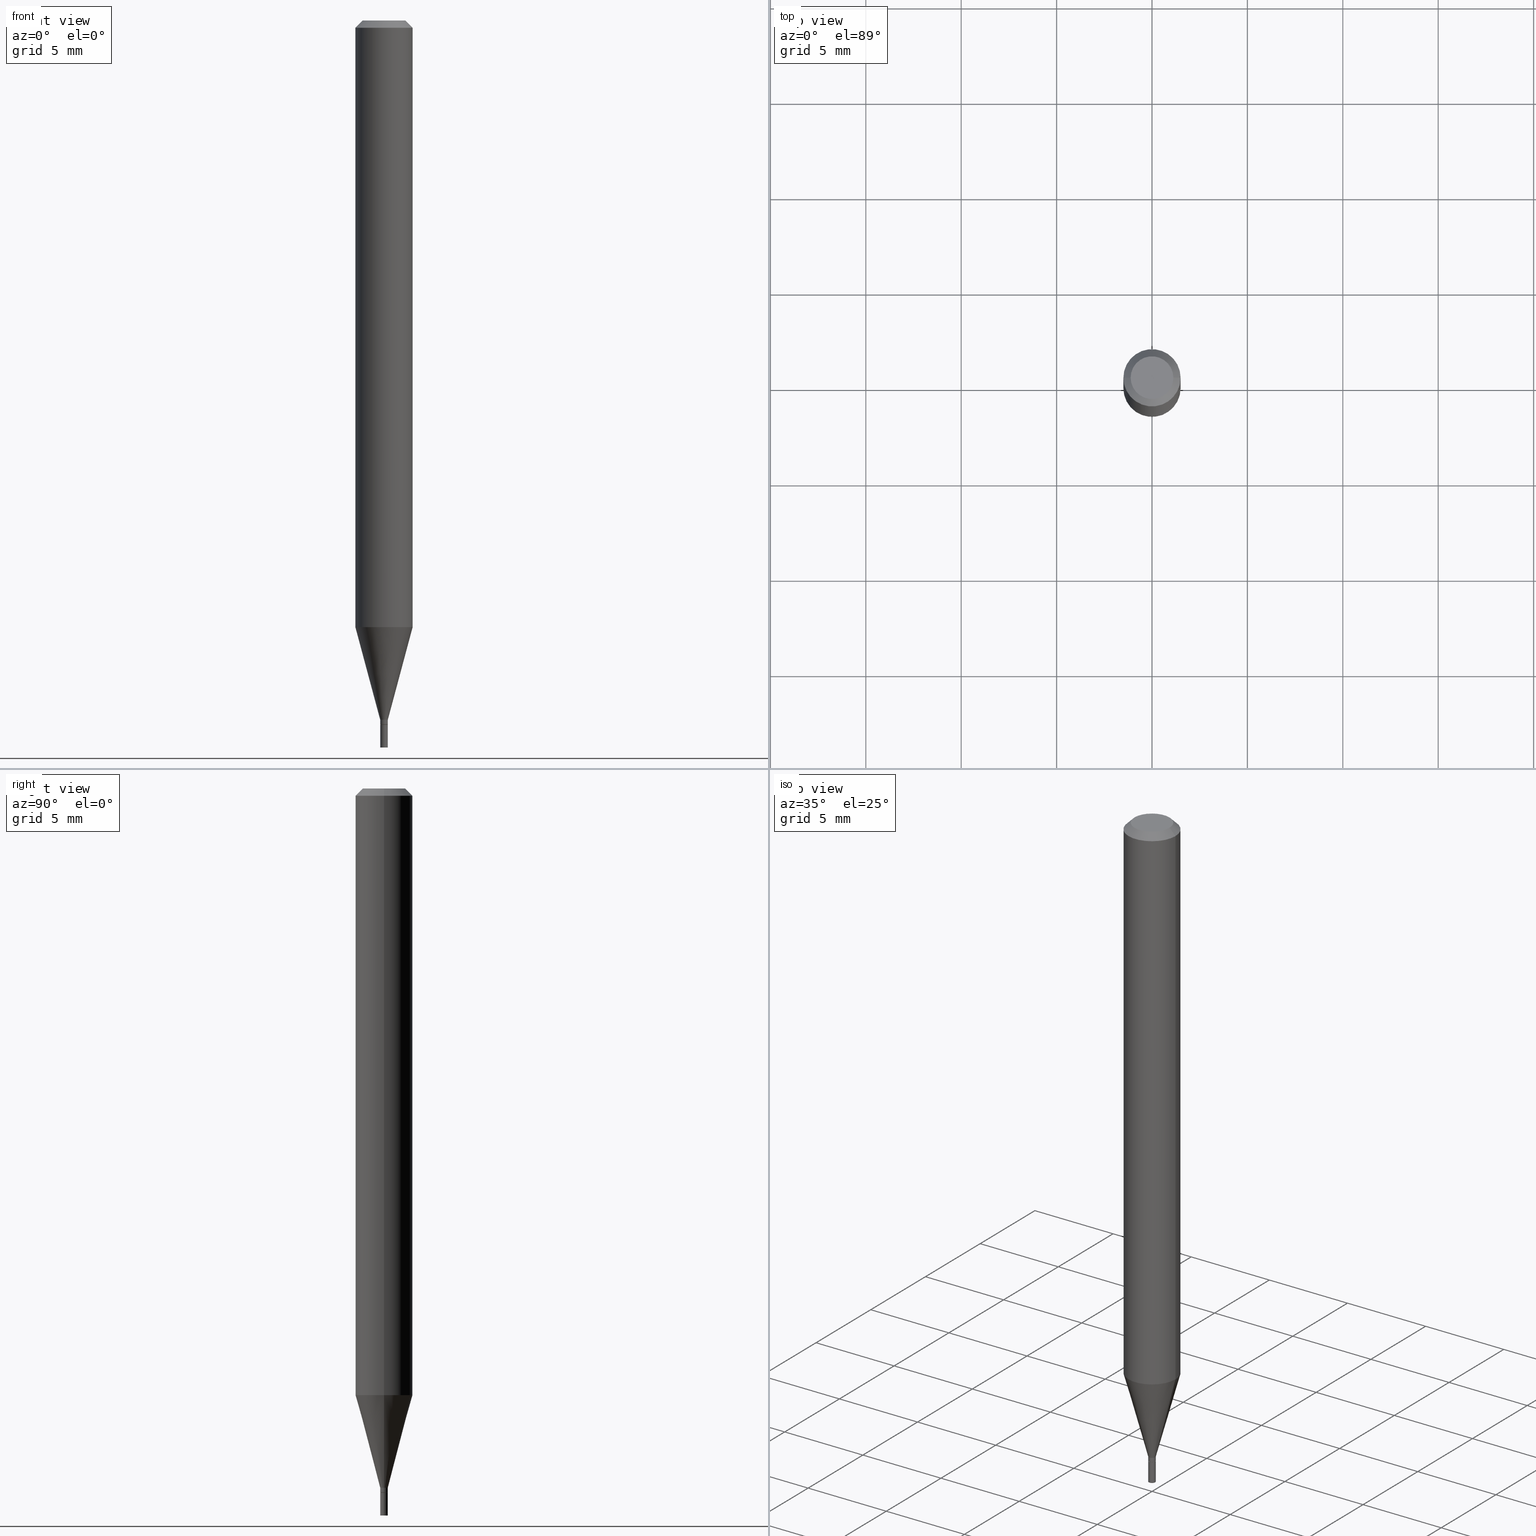
[diagram: canonical four-view strip — front | top / right | iso, engineering-drawing reading convention]
A machine part, canonical four-view strip (front | top / right | iso — engineering-drawing reading convention). The complete STEP part file that produces these views, byte-faithful:
ISO-10303-21;
HEADER;
FILE_DESCRIPTION (( 'STEP AP203' ),
    '1' );
FILE_NAME ('05057.STEP',
    '2024-03-14T17:38:15',
    ( '' ),
    ( '' ),
    'SwSTEP 2.0',
    'SolidWorks 2023',
    '' );
FILE_SCHEMA (( 'CONFIG_CONTROL_DESIGN' ));
ENDSEC;

DATA;
#1 = CARTESIAN_POINT ( 'NONE',  ( 3.551554347222674728E-29, -5.070678348401901214E-15, -1.452300000000000146 ) ) ;
#2 = DIRECTION ( 'NONE',  ( 1.000000000000000000, -6.982962677686327453E-15, 0.000000000000000000 ) ) ;
#3 = ORIENTED_EDGE ( 'NONE', *, *, #91, .F. ) ;
#4 = EDGE_CURVE ( 'NONE', #354, #336, #350, .T. ) ;
#5 = CLOSED_SHELL ( 'NONE', ( #11, #209, #257, #51 ) ) ;
#6 = ORIENTED_EDGE ( 'NONE', *, *, #247, .T. ) ;
#7 = AXIS2_PLACEMENT_3D ( 'NONE', #420, #95, #389 ) ;
#8 =( NAMED_UNIT ( * ) SI_UNIT ( $, .STERADIAN. ) SOLID_ANGLE_UNIT ( ) );
#9 = ORIENTED_EDGE ( 'NONE', *, *, #239, .F. ) ;
#10 = CYLINDRICAL_SURFACE ( 'NONE', #199, 0.05904999999999999832 ) ;
#11 = ADVANCED_FACE ( 'NONE', ( #318 ), #352, .T. ) ;
#12 = APPROVAL ( #152, 'UNSPECIFIED' ) ;
#13 = AXIS2_PLACEMENT_3D ( 'NONE', #283, #311, #104 ) ;
#14 = LOCAL_TIME ( 13, 38, 15.00000000000000000, #48 ) ;
#15 = EDGE_LOOP ( 'NONE', ( #9, #450, #189, #264 ) ) ;
#16 = EDGE_CURVE ( 'NONE', #146, #225, #453, .T. ) ;
#17 = CALENDAR_DATE ( 2024, 14, 3 ) ;
#18 = CARTESIAN_POINT ( 'NONE',  ( 0.000000000000000000, 0.000000000000000000, 0.000000000000000000 ) ) ;
#19 = AXIS2_PLACEMENT_3D ( 'NONE', #400, #115, #41 ) ;
#20 = DATE_AND_TIME ( #269, #78 ) ;
#21 = DIRECTION ( 'NONE',  ( -2.445468806185136597E-29, 3.491481338843145583E-15, 1.000000000000000000 ) ) ;
#22 = CARTESIAN_POINT ( 'NONE',  ( 0.04404999999999999888, -3.798447818264462051E-16, -1.162416517208521811E-16 ) ) ;
#23 = PERSON_AND_ORGANIZATION_ROLE ( 'creator' ) ;
#24 = ORIENTED_EDGE ( 'NONE', *, *, #295, .F. ) ;
#25 = CARTESIAN_POINT ( 'NONE',  ( 0.007349999999999998895, -5.123748864752316500E-15, -1.452800000000000091 ) ) ;
#26 = CARTESIAN_POINT ( 'NONE',  ( 3.075995059520799729E-16, 0.04404999999999999888, -2.119205788364678519E-16 ) ) ;
#27 = CARTESIAN_POINT ( 'NONE',  ( 5.481625701987270760E-17, 0.007849999999994927008, -1.452800000000000091 ) ) ;
#28 = CIRCLE ( 'NONE', #94, 0.05904999999999999832 ) ;
#29 = LOCAL_TIME ( 13, 38, 15.00000000000000000, #442 ) ;
#30 = DIRECTION ( 'NONE',  ( 2.438088387897960049E-29, -3.491481338843145188E-15, -1.000000000000000000 ) ) ;
#31 = UNCERTAINTY_MEASURE_WITH_UNIT (LENGTH_MEASURE( 1.000000000000000082E-05 ), #62, 'distance_accuracy_value', 'NONE');
#32 = CARTESIAN_POINT ( 'NONE',  ( 3.668203209277705088E-31, -5.237222008264718399E-17, -0.01499999999999999944 ) ) ;
#33 = EDGE_CURVE ( 'NONE', #306, #460, #133, .T. ) ;
#34 = CIRCLE ( 'NONE', #7, 0.007849999999999919542 ) ;
#35 = DIRECTION ( 'NONE',  ( 1.000000000000000000, -6.982962677686273021E-15, 0.000000000000000000 ) ) ;
#36 = CIRCLE ( 'NONE', #395, 0.007849999999999921277 ) ;
#37 = ORIENTED_EDGE ( 'NONE', *, *, #129, .F. ) ;
#38 = CC_DESIGN_PERSON_AND_ORGANIZATION_ASSIGNMENT ( #158, #23, ( #305 ) ) ;
#39 = ADVANCED_FACE ( 'NONE', ( #166 ), #134, .T. ) ;
#40 = EDGE_LOOP ( 'NONE', ( #424, #37 ) ) ;
#41 = DIRECTION ( 'NONE',  ( 1.000000000000000000, -6.982962677686327453E-15, 0.000000000000000000 ) ) ;
#42 = AXIS2_PLACEMENT_3D ( 'NONE', #47, #120, #465 ) ;
#43 = EDGE_CURVE ( 'NONE', #306, #225, #212, .T. ) ;
#44 = PRODUCT_DEFINITION_FORMATION_WITH_SPECIFIED_SOURCE ( 'ANY', '', #56, .NOT_KNOWN. ) ;
#45 = ORIENTED_EDGE ( 'NONE', *, *, #247, .F. ) ;
#46 = DIRECTION ( 'NONE',  ( 1.000000000000000000, -6.982962677686273021E-15, 0.000000000000000000 ) ) ;
#47 = CARTESIAN_POINT ( 'NONE',  ( 0.000000000000000000, 0.000000000000000000, 0.000000000000000000 ) ) ;
#48 = COORDINATED_UNIVERSAL_TIME_OFFSET ( 5, 0, .BEHIND. ) ;
#49 = AXIS2_PLACEMENT_3D ( 'NONE', #203, #274, #281 ) ;
#50 = AXIS2_PLACEMENT_3D ( 'NONE', #236, #108, #251 ) ;
#51 = ADVANCED_FACE ( 'NONE', ( #53 ), #355, .F. ) ;
#52 = PERSON_AND_ORGANIZATION ( #231, #439 ) ;
#53 = FACE_OUTER_BOUND ( 'NONE', #294, .T. ) ;
#54 = ORIENTED_EDGE ( 'NONE', *, *, #239, .T. ) ;
#55 = CARTESIAN_POINT ( 'NONE',  ( 3.552777081625766969E-29, -5.072424089071322718E-15, -1.452800000000000091 ) ) ;
#56 = PRODUCT ( '05057', '05057', '', ( #214 ) ) ;
#57 = DESIGN_CONTEXT ( 'detailed design', #443, 'design' ) ;
#58 = CIRCLE ( 'NONE', #13, 0.007349999999999998895 ) ;
#59 = CARTESIAN_POINT ( 'NONE',  ( 0.007849999999999999339, -5.481625701983718421E-17, 3.827798768999809240E-31 ) ) ;
#60 = ORIENTED_EDGE ( 'NONE', *, *, #89, .T. ) ;
#61 = DIRECTION ( 'NONE',  ( -2.445468806185136877E-29, 3.491481338843145188E-15, 1.000000000000000000 ) ) ;
#62 =( CONVERSION_BASED_UNIT ( 'INCH', #388 ) LENGTH_UNIT ( ) NAMED_UNIT ( #344 ) );
#63 = DIRECTION ( 'NONE',  ( 1.000000000000000000, -6.982962677686273021E-15, 0.000000000000000000 ) ) ;
#64 = CARTESIAN_POINT ( 'NONE',  ( -0.05904999999999999832, 4.195754854663391478E-16, -2.904631170795521892E-30 ) ) ;
#65 = AXIS2_PLACEMENT_3D ( 'NONE', #415, #21, #159 ) ;
#66 = DIRECTION ( 'NONE',  ( -2.445468806185136597E-29, 3.491481338843145583E-15, 1.000000000000000000 ) ) ;
#67 = CARTESIAN_POINT ( 'NONE',  ( 0.007849999999999919542, -5.481625701983663571E-17, 3.827798768999770704E-31 ) ) ;
#68 = ADVANCED_FACE ( 'NONE', ( #227 ), #325, .T. ) ;
#69 = LINE ( 'NONE', #59, #208 ) ;
#70 = CYLINDRICAL_SURFACE ( 'NONE', #42, 0.007849999999999999339 ) ;
#71 = CARTESIAN_POINT ( 'NONE',  ( 3.061039765313920249E-29, -4.370353525270541292E-15, -1.251718998652473935 ) ) ;
#72 = CC_DESIGN_DATE_AND_TIME_ASSIGNMENT ( #127, #190, ( #213 ) ) ;
#73 = FACE_OUTER_BOUND ( 'NONE', #233, .T. ) ;
#74 = ORIENTED_EDGE ( 'NONE', *, *, #91, .T. ) ;
#75 = ORIENTED_EDGE ( 'NONE', *, *, #169, .T. ) ;
#76 = ORIENTED_EDGE ( 'NONE', *, *, #285, .T. ) ;
#77 = AXIS2_PLACEMENT_3D ( 'NONE', #164, #138, #98 ) ;
#78 = LOCAL_TIME ( 13, 38, 15.00000000000000000, #347 ) ;
#79 = DIRECTION ( 'NONE',  ( 1.000000000000000000, -6.982962677686274599E-15, 0.000000000000000000 ) ) ;
#80 = ORIENTED_EDGE ( 'NONE', *, *, #327, .T. ) ;
#81 = PERSON_AND_ORGANIZATION ( #231, #439 ) ;
#82 = APPROVAL ( #229, 'UNSPECIFIED' ) ;
#83 = VECTOR ( 'NONE', #387, 39.37007874015748143 ) ;
#84 = CIRCLE ( 'NONE', #379, 0.007849999999999919542 ) ;
#85 = DIRECTION ( 'NONE',  ( -2.445468806185136597E-29, 3.491481338843145583E-15, 1.000000000000000000 ) ) ;
#86 = DATE_AND_TIME ( #276, #292 ) ;
#87 = CARTESIAN_POINT ( 'NONE',  ( -0.007849999999999919542, -4.981731670925723825E-15, -1.442800000000000304 ) ) ;
#88 = CARTESIAN_POINT ( 'NONE',  ( -0.007849999999999919542, -4.466254855364963601E-15, -1.442800000000000304 ) ) ;
#89 = EDGE_CURVE ( 'NONE', #460, #145, #447, .T. ) ;
#90 = DIRECTION ( 'NONE',  ( -2.445468806185136877E-29, 3.491481338843145188E-15, 1.000000000000000000 ) ) ;
#91 = EDGE_CURVE ( 'NONE', #114, #222, #412, .T. ) ;
#92 = ORIENTED_EDGE ( 'NONE', *, *, #290, .F. ) ;
#93 = FACE_OUTER_BOUND ( 'NONE', #300, .T. ) ;
#94 = AXIS2_PLACEMENT_3D ( 'NONE', #32, #464, #141 ) ;
#95 = DIRECTION ( 'NONE',  ( -2.445468806185136597E-29, 3.491481338843145583E-15, 1.000000000000000000 ) ) ;
#96 = ORIENTED_EDGE ( 'NONE', *, *, #267, .T. ) ;
#97 = CARTESIAN_POINT ( 'NONE',  ( -0.007349999999999998895, -5.017549970818845172E-15, -1.452800000000000091 ) ) ;
#98 = DIRECTION ( 'NONE',  ( 1.000000000000000000, -6.982962677686265922E-15, 4.876176775795935793E-29 ) ) ;
#99 = LINE ( 'NONE', #391, #177 ) ;
#100 = LINE ( 'NONE', #64, #376 ) ;
#101 = EDGE_CURVE ( 'NONE', #146, #372, #58, .T. ) ;
#102 = EDGE_CURVE ( 'NONE', #259, #222, #69, .T. ) ;
#103 = CARTESIAN_POINT ( 'NONE',  ( -0.007849999999999999339, 5.577760475716785990E-17, -3.861364045850100522E-31 ) ) ;
#104 = DIRECTION ( 'NONE',  ( 1.000000000000000000, -6.982962677686261189E-15, 0.000000000000000000 ) ) ;
#105 = VECTOR ( 'NONE', #61, 39.37007874015748143 ) ;
#106 = CONICAL_SURFACE ( 'NONE', #301, 0.05904999999999999832, 0.7853981633974522758 ) ;
#107 = DIRECTION ( 'NONE',  ( 1.000000000000000000, -6.982962677686265922E-15, 4.888540261209747396E-29 ) ) ;
#108 = DIRECTION ( 'NONE',  ( -2.445468806185136597E-29, 3.491481338843145583E-15, 1.000000000000000000 ) ) ;
#109 = DIRECTION ( 'NONE',  ( -2.438088387897960049E-29, 3.491481338843145188E-15, 1.000000000000000000 ) ) ;
#110 =( NAMED_UNIT ( * ) PLANE_ANGLE_UNIT ( ) SI_UNIT ( $, .RADIAN. ) );
#111 = MANIFOLD_SOLID_BREP ( 'Body-Move/Copy2[1]', #5 ) ;
#112 = AXIS2_PLACEMENT_3D ( 'NONE', #360, #130, #165 ) ;
#113 = PERSON_AND_ORGANIZATION ( #231, #439 ) ;
#114 = VERTEX_POINT ( 'NONE', #316 ) ;
#115 = DIRECTION ( 'NONE',  ( -2.445468806185136597E-29, 3.491481338843145583E-15, 1.000000000000000000 ) ) ;
#116 = EDGE_LOOP ( 'NONE', ( #6, #435, #288, #184 ) ) ;
#117 = CIRCLE ( 'NONE', #19, 0.007849999999999999339 ) ;
#118 = DIRECTION ( 'NONE',  ( -2.445468806185136597E-29, 3.491481338843145583E-15, 1.000000000000000000 ) ) ;
#119 = ORIENTED_EDGE ( 'NONE', *, *, #285, .F. ) ;
#120 = DIRECTION ( 'NONE',  ( -2.445468806185136597E-29, 3.491481338843145583E-15, 1.000000000000000000 ) ) ;
#121 = DATE_AND_TIME ( #17, #29 ) ;
#122 = VERTEX_POINT ( 'NONE', #452 ) ;
#123 = APPROVAL_DATE_TIME ( #121, #82 ) ;
#124 = CONICAL_SURFACE ( 'NONE', #340, 0.007849999999999919542, 0.2617993877991501295 ) ;
#125 = VECTOR ( 'NONE', #416, 39.37007874015747433 ) ;
#126 = ORIENTED_EDGE ( 'NONE', *, *, #290, .T. ) ;
#127 = DATE_AND_TIME ( #265, #433 ) ;
#128 = ORIENTED_EDGE ( 'NONE', *, *, #150, .T. ) ;
#129 = EDGE_CURVE ( 'NONE', #372, #146, #394, .T. ) ;
#130 = DIRECTION ( 'NONE',  ( -2.445468806185136597E-29, 3.491481338843145583E-15, 1.000000000000000000 ) ) ;
#131 = CARTESIAN_POINT ( 'NONE',  ( 3.552777081625766969E-29, -5.072424089071322718E-15, -1.452800000000000091 ) ) ;
#132 = PERSON_AND_ORGANIZATION ( #231, #439 ) ;
#133 = LINE ( 'NONE', #277, #105 ) ;
#134 = CONICAL_SURFACE ( 'NONE', #182, 0.05904999999999999832, 0.7853981633974522758 ) ;
#135 = DIRECTION ( 'NONE',  ( 1.000000000000000000, -6.982962677686265922E-15, 4.888540261209747396E-29 ) ) ;
#136 = CARTESIAN_POINT ( 'NONE',  ( 3.061039765313920249E-29, -4.370353525270541292E-15, -1.251718998652473935 ) ) ;
#137 = CARTESIAN_POINT ( 'NONE',  ( -0.007349999999999998895, -5.020199197992955584E-15, -1.452800000000000091 ) ) ;
#138 = DIRECTION ( 'NONE',  ( -2.445468806185136597E-29, 3.491481338843145583E-15, 1.000000000000000000 ) ) ;
#139 = EDGE_CURVE ( 'NONE', #460, #457, #34, .T. ) ;
#140 = DIRECTION ( 'NONE',  ( -2.445468806185136597E-29, 3.491481338843145583E-15, 1.000000000000000000 ) ) ;
#141 = DIRECTION ( 'NONE',  ( 1.000000000000000000, -6.982962677686266711E-15, 0.000000000000000000 ) ) ;
#142 = VECTOR ( 'NONE', #459, 39.37007874015748143 ) ;
#143 = AXIS2_PLACEMENT_3D ( 'NONE', #270, #200, #135 ) ;
#144 = APPLICATION_PROTOCOL_DEFINITION ( 'international standard', 'config_control_design', 1994, #461 ) ;
#145 = VERTEX_POINT ( 'NONE', #371 ) ;
#146 = VERTEX_POINT ( 'NONE', #406 ) ;
#147 = DIRECTION ( 'NONE',  ( -2.445468806185136597E-29, 3.491481338843145583E-15, 1.000000000000000000 ) ) ;
#148 = CARTESIAN_POINT ( 'NONE',  ( 2.842653332627866660E-45, -4.058555577796679728E-31, -1.162416517208545723E-16 ) ) ;
#149 = ORIENTED_EDGE ( 'NONE', *, *, #392, .T. ) ;
#150 = EDGE_CURVE ( 'NONE', #336, #354, #278, .T. ) ;
#151 = ORIENTED_EDGE ( 'NONE', *, *, #43, .F. ) ;
#152 = APPROVAL_STATUS ( 'not_yet_approved' ) ;
#153 = ORIENTED_EDGE ( 'NONE', *, *, #169, .F. ) ;
#154 = APPLICATION_PROTOCOL_DEFINITION ( 'international standard', 'config_control_design', 1994, #443 ) ;
#155 = DIRECTION ( 'NONE',  ( -2.445468806185136597E-29, 3.491481338843145583E-15, 1.000000000000000000 ) ) ;
#156 = CIRCLE ( 'NONE', #432, 0.05904999999999999832 ) ;
#157 = AXIS2_PLACEMENT_3D ( 'NONE', #228, #422, #271 ) ;
#158 = PERSON_AND_ORGANIZATION ( #231, #439 ) ;
#159 = DIRECTION ( 'NONE',  ( 1.000000000000000000, -6.982962677686327453E-15, 0.000000000000000000 ) ) ;
#160 = FACE_OUTER_BOUND ( 'NONE', #15, .T. ) ;
#161 = CARTESIAN_POINT ( 'NONE',  ( -0.05904999999999999832, -1.791787387210255284E-15, -0.01499999999999999944 ) ) ;
#162 = DIRECTION ( 'NONE',  ( -2.445468806185136877E-29, 3.491481338843145188E-15, 1.000000000000000000 ) ) ;
#163 = PERSON_AND_ORGANIZATION ( #231, #439 ) ;
#164 = CARTESIAN_POINT ( 'NONE',  ( 0.000000000000000000, 0.000000000000000000, 0.000000000000000000 ) ) ;
#165 = DIRECTION ( 'NONE',  ( 1.000000000000000000, -6.982962677686266711E-15, 0.000000000000000000 ) ) ;
#166 = FACE_OUTER_BOUND ( 'NONE', #364, .T. ) ;
#167 = LINE ( 'NONE', #322, #142 ) ;
#168 = FACE_OUTER_BOUND ( 'NONE', #440, .T. ) ;
#169 = EDGE_CURVE ( 'NONE', #186, #145, #156, .T. ) ;
#170 = AXIS2_PLACEMENT_3D ( 'NONE', #148, #176, #107 ) ;
#171 =( GEOMETRIC_REPRESENTATION_CONTEXT ( 3 ) GLOBAL_UNCERTAINTY_ASSIGNED_CONTEXT ( ( #31 ) ) GLOBAL_UNIT_ASSIGNED_CONTEXT ( ( #62, #110, #8 ) ) REPRESENTATION_CONTEXT ( 'NONE', 'WORKASPACE' ) );
#172 = DIRECTION ( 'NONE',  ( -1.000000000000000000, 6.982962677686265922E-15, -4.876176775795935793E-29 ) ) ;
#173 = DIRECTION ( 'NONE',  ( -2.445468806185136877E-29, 3.491481338843145188E-15, 1.000000000000000000 ) ) ;
#174 = DIRECTION ( 'NONE',  ( -2.445468806185136597E-29, 3.491481338843145583E-15, 1.000000000000000000 ) ) ;
#175 = ADVANCED_FACE ( 'NONE', ( #335 ), #124, .T. ) ;
#176 = DIRECTION ( 'NONE',  ( -2.445468806185136597E-29, 3.491481338843145583E-15, 1.000000000000000000 ) ) ;
#177 = VECTOR ( 'NONE', #206, 39.37007874015748143 ) ;
#178 = CARTESIAN_POINT ( 'NONE',  ( 0.000000000000000000, 0.000000000000000000, 0.000000000000000000 ) ) ;
#179 = EDGE_LOOP ( 'NONE', ( #266, #128 ) ) ;
#180 = ADVANCED_FACE ( 'NONE', ( #296 ), #428, .T. ) ;
#181 = CC_DESIGN_PERSON_AND_ORGANIZATION_ASSIGNMENT ( #52, #193, ( #213 ) ) ;
#182 = AXIS2_PLACEMENT_3D ( 'NONE', #413, #242, #279 ) ;
#183 = AXIS2_PLACEMENT_3D ( 'NONE', #178, #333, #402 ) ;
#184 = ORIENTED_EDGE ( 'NONE', *, *, #102, .F. ) ;
#185 = FACE_OUTER_BOUND ( 'NONE', #343, .T. ) ;
#186 = VERTEX_POINT ( 'NONE', #373 ) ;
#187 = DIRECTION ( 'NONE',  ( 0.7071067811865503483, -7.319954787623265512E-15, -0.7071067811865446862 ) ) ;
#188 = ORIENTED_EDGE ( 'NONE', *, *, #425, .F. ) ;
#189 = ORIENTED_EDGE ( 'NONE', *, *, #295, .T. ) ;
#190 = DATE_TIME_ROLE ( 'classification_date' ) ;
#191 = EDGE_LOOP ( 'NONE', ( #405, #370, #445, #92 ) ) ;
#192 = AXIS2_PLACEMENT_3D ( 'NONE', #223, #437, #220 ) ;
#193 = PERSON_AND_ORGANIZATION_ROLE ( 'classification_officer' ) ;
#194 = ORIENTED_EDGE ( 'NONE', *, *, #101, .T. ) ;
#195 = EDGE_LOOP ( 'NONE', ( #45, #411 ) ) ;
#196 = CC_DESIGN_PERSON_AND_ORGANIZATION_ASSIGNMENT ( #307, #414, ( #44 ) ) ;
#197 = DATE_AND_TIME ( #380, #14 ) ;
#198 = ORIENTED_EDGE ( 'NONE', *, *, #102, .T. ) ;
#199 = AXIS2_PLACEMENT_3D ( 'NONE', #243, #66, #463 ) ;
#200 = DIRECTION ( 'NONE',  ( -2.445468806185136597E-29, 3.491481338843145583E-15, 1.000000000000000000 ) ) ;
#201 = ORIENTED_EDGE ( 'NONE', *, *, #332, .F. ) ;
#202 = CARTESIAN_POINT ( 'NONE',  ( 0.007849999999999919542, -5.092325532702727858E-15, -1.442800000000000304 ) ) ;
#203 = CARTESIAN_POINT ( 'NONE',  ( 0.000000000000000000, 0.000000000000000000, 0.000000000000000000 ) ) ;
#204 = DIRECTION ( 'NONE',  ( 2.438088387897960049E-29, -3.491481338843145188E-15, -1.000000000000000000 ) ) ;
#205 = LINE ( 'NONE', #202, #125 ) ;
#206 = DIRECTION ( 'NONE',  ( -0.7071067811865503483, 2.468850131082286248E-15, -0.7071067811865446862 ) ) ;
#207 = CLOSED_SHELL ( 'NONE', ( #382, #254, #39, #284, #409, #175, #68, #462, #374, #261, #180, #434 ) ) ;
#208 = VECTOR ( 'NONE', #162, 39.37007874015748143 ) ;
#209 = ADVANCED_FACE ( 'NONE', ( #337 ), #375, .F. ) ;
#210 = CARTESIAN_POINT ( 'NONE',  ( 0.007849999999999999339, -5.292038265284556544E-15, -1.500000000000000222 ) ) ;
#211 = LINE ( 'NONE', #248, #226 ) ;
#212 = CIRCLE ( 'NONE', #309, 0.007849999999999921277 ) ;
#213 = SECURITY_CLASSIFICATION ( '', '', #449 ) ;
#214 = MECHANICAL_CONTEXT ( 'NONE', #461, 'mechanical' ) ;
#215 = CC_DESIGN_PERSON_AND_ORGANIZATION_ASSIGNMENT ( #81, #417, ( #44 ) ) ;
#216 = ORIENTED_EDGE ( 'NONE', *, *, #33, .T. ) ;
#217 = ORIENTED_EDGE ( 'NONE', *, *, #139, .F. ) ;
#218 = CONICAL_SURFACE ( 'NONE', #466, 0.007349999999999998895, 0.7853981633974718157 ) ;
#219 = CC_DESIGN_APPROVAL ( #12, ( #213 ) ) ;
#220 = DIRECTION ( 'NONE',  ( 1.000000000000000000, -6.982962677686261189E-15, 0.000000000000000000 ) ) ;
#221 = CARTESIAN_POINT ( 'NONE',  ( 3.576687321579069994E-29, -5.368277968210015545E-15, -1.500000000000000222 ) ) ;
#222 = VERTEX_POINT ( 'NONE', #367 ) ;
#223 = CARTESIAN_POINT ( 'NONE',  ( 3.552777081625766969E-29, -5.072424089071322718E-15, -1.452800000000000091 ) ) ;
#224 = APPROVAL_STATUS ( 'not_yet_approved' ) ;
#225 = VERTEX_POINT ( 'NONE', #302 ) ;
#226 = VECTOR ( 'NONE', #187, 39.37007874015748143 ) ;
#227 = FACE_OUTER_BOUND ( 'NONE', #249, .T. ) ;
#228 = CARTESIAN_POINT ( 'NONE',  ( 0.000000000000000000, 0.000000000000000000, 0.000000000000000000 ) ) ;
#229 = APPROVAL_STATUS ( 'not_yet_approved' ) ;
#230 = ORIENTED_EDGE ( 'NONE', *, *, #129, .T. ) ;
#231 = PERSON ( 'UNSPECIFIED', 'UNSPECIFIED', 'UNSPECIFIED', ('UNSPECIFIED'), ('UNSPECIFIED'), ('UNSPECIFIED') ) ;
#232 = CYLINDRICAL_SURFACE ( 'NONE', #49, 0.007849999999999919542 ) ;
#233 = EDGE_LOOP ( 'NONE', ( #346, #262, #321, #217 ) ) ;
#234 = SHAPE_DEFINITION_REPRESENTATION ( #304, #298 ) ;
#235 = DIRECTION ( 'NONE',  ( 2.445468806185136597E-29, -3.491481338843145583E-15, -1.000000000000000000 ) ) ;
#236 = CARTESIAN_POINT ( 'NONE',  ( 3.528322393563915424E-29, -5.037509275682891069E-15, -1.442800000000000304 ) ) ;
#237 = VECTOR ( 'NONE', #348, 39.37007874015747433 ) ;
#238 = ORIENTED_EDGE ( 'NONE', *, *, #368, .F. ) ;
#239 = EDGE_CURVE ( 'NONE', #336, #122, #211, .T. ) ;
#240 = LINE ( 'NONE', #103, #252 ) ;
#241 = DIRECTION ( 'NONE',  ( 1.000000000000000000, -6.982962677686261189E-15, 0.000000000000000000 ) ) ;
#242 = DIRECTION ( 'NONE',  ( 2.445468806185136597E-29, -3.491481338843145583E-15, -1.000000000000000000 ) ) ;
#243 = CARTESIAN_POINT ( 'NONE',  ( 0.000000000000000000, 0.000000000000000000, 0.000000000000000000 ) ) ;
#244 = DIRECTION ( 'NONE',  ( -2.445468806185136877E-29, 3.491481338843145188E-15, 1.000000000000000000 ) ) ;
#245 = CARTESIAN_POINT ( 'NONE',  ( 0.007849999999999919542, -5.092325532702727858E-15, -1.442800000000000304 ) ) ;
#246 = CIRCLE ( 'NONE', #286, 0.007849999999999999339 ) ;
#247 = EDGE_CURVE ( 'NONE', #259, #313, #246, .T. ) ;
#248 = CARTESIAN_POINT ( 'NONE',  ( 0.05904999999999999832, -4.574846268510561447E-16, -0.01499999999999999944 ) ) ;
#249 = EDGE_LOOP ( 'NONE', ( #293, #126, #76, #238 ) ) ;
#250 = DIRECTION ( 'NONE',  ( 1.000000000000000000, -6.982962677686265922E-15, 4.876176775795935793E-29 ) ) ;
#251 = DIRECTION ( 'NONE',  ( 1.000000000000000000, -6.982962677686274599E-15, 0.000000000000000000 ) ) ;
#252 = VECTOR ( 'NONE', #173, 39.37007874015748143 ) ;
#253 = AXIS2_PLACEMENT_3D ( 'NONE', #55, #326, #315 ) ;
#254 = ADVANCED_FACE ( 'NONE', ( #329 ), #218, .T. ) ;
#255 = EDGE_LOOP ( 'NONE', ( #365, #230, #342, #151 ) ) ;
#256 = ORIENTED_EDGE ( 'NONE', *, *, #362, .T. ) ;
#257 = ADVANCED_FACE ( 'NONE', ( #408 ), #70, .T. ) ;
#258 = AXIS2_PLACEMENT_3D ( 'NONE', #431, #109, #250 ) ;
#259 = VERTEX_POINT ( 'NONE', #210 ) ;
#260 = CONICAL_SURFACE ( 'NONE', #50, 0.007849999999999919542, 0.2617993877991501295 ) ;
#261 = ADVANCED_FACE ( 'NONE', ( #361 ), #289, .F. ) ;
#262 = ORIENTED_EDGE ( 'NONE', *, *, #43, .T. ) ;
#263 = DATE_TIME_ROLE ( 'creation_date' ) ;
#264 = ORIENTED_EDGE ( 'NONE', *, *, #368, .T. ) ;
#265 = CALENDAR_DATE ( 2024, 14, 3 ) ;
#266 = ORIENTED_EDGE ( 'NONE', *, *, #4, .T. ) ;
#267 = EDGE_CURVE ( 'NONE', #313, #259, #117, .T. ) ;
#268 = APPROVAL ( #224, 'UNSPECIFIED' ) ;
#269 = CALENDAR_DATE ( 2024, 14, 3 ) ;
#270 = CARTESIAN_POINT ( 'NONE',  ( 2.842653332627866660E-45, -4.058555577796679728E-31, -1.162416517208545723E-16 ) ) ;
#271 = DIRECTION ( 'NONE',  ( 1.000000000000000000, -6.982962677686267499E-15, 4.876176775795936353E-29 ) ) ;
#272 = COORDINATED_UNIVERSAL_TIME_OFFSET ( 5, 0, .BEHIND. ) ;
#273 = ORIENTED_EDGE ( 'NONE', *, *, #362, .F. ) ;
#274 = DIRECTION ( 'NONE',  ( -2.445468806185136597E-29, 3.491481338843145583E-15, 1.000000000000000000 ) ) ;
#275 = DIRECTION ( 'NONE',  ( -2.445468806185136597E-29, 3.491481338843145583E-15, 1.000000000000000000 ) ) ;
#276 = CALENDAR_DATE ( 2024, 14, 3 ) ;
#277 = CARTESIAN_POINT ( 'NONE',  ( -0.007849999999999919542, 5.577760475716729290E-17, -3.861364045850061986E-31 ) ) ;
#278 = CIRCLE ( 'NONE', #170, 0.04404999999999999888 ) ;
#279 = DIRECTION ( 'NONE',  ( -1.000000000000000000, 6.982962677686266711E-15, 0.000000000000000000 ) ) ;
#280 = DIRECTION ( 'NONE',  ( -2.445468806185136597E-29, 3.491481338843145583E-15, 1.000000000000000000 ) ) ;
#281 = DIRECTION ( 'NONE',  ( 1.000000000000000000, -6.982962677686267499E-15, 4.876176775795936353E-29 ) ) ;
#282 = DIRECTION ( 'NONE',  ( 1.000000000000000000, -6.982962677686274599E-15, 0.000000000000000000 ) ) ;
#283 = CARTESIAN_POINT ( 'NONE',  ( 3.552777081625766969E-29, -5.072424089071322718E-15, -1.452800000000000091 ) ) ;
#284 = ADVANCED_FACE ( 'NONE', ( #185 ), #10, .T. ) ;
#285 = EDGE_CURVE ( 'NONE', #186, #122, #167, .T. ) ;
#286 = AXIS2_PLACEMENT_3D ( 'NONE', #441, #174, #2 ) ;
#287 = APPROVAL_PERSON_ORGANIZATION ( #163, #268, #410 ) ;
#288 = ORIENTED_EDGE ( 'NONE', *, *, #396, .F. ) ;
#289 = PLANE ( 'NONE',  #258 ) ;
#290 = EDGE_CURVE ( 'NONE', #145, #186, #385, .T. ) ;
#291 = CIRCLE ( 'NONE', #253, 0.007849999999999999339 ) ;
#292 = LOCAL_TIME ( 13, 38, 15.00000000000000000, #272 ) ;
#293 = ORIENTED_EDGE ( 'NONE', *, *, #392, .F. ) ;
#294 = EDGE_LOOP ( 'NONE', ( #334, #74 ) ) ;
#295 = EDGE_CURVE ( 'NONE', #354, #384, #99, .T. ) ;
#296 = FACE_OUTER_BOUND ( 'NONE', #255, .T. ) ;
#297 = CARTESIAN_POINT ( 'NONE',  ( 3.552777081625766969E-29, -5.072424089071322718E-15, -1.452800000000000091 ) ) ;
#298 = ADVANCED_BREP_SHAPE_REPRESENTATION ( '05057', ( #111, #423, #183 ), #171 ) ;
#299 = VECTOR ( 'NONE', #90, 39.37007874015748143 ) ;
#300 = EDGE_LOOP ( 'NONE', ( #338, #60, #153, #378 ) ) ;
#301 = AXIS2_PLACEMENT_3D ( 'NONE', #314, #235, #386 ) ;
#302 = CARTESIAN_POINT ( 'NONE',  ( 0.007849999999999921277, -5.125494605421738004E-15, -1.452300000000000146 ) ) ;
#303 = APPROVAL_ROLE ( '' ) ;
#304 = PRODUCT_DEFINITION_SHAPE ( 'NONE', 'NONE',  #305 ) ;
#305 = PRODUCT_DEFINITION ( 'UNKNOWN', '', #44, #57 ) ;
#306 = VERTEX_POINT ( 'NONE', #444 ) ;
#307 = PERSON_AND_ORGANIZATION ( #231, #439 ) ;
#308 = DIRECTION ( 'NONE',  ( 1.000000000000000000, -6.982962677686266711E-15, 4.876176775795936353E-29 ) ) ;
#309 = AXIS2_PLACEMENT_3D ( 'NONE', #390, #85, #63 ) ;
#310 = CC_DESIGN_APPROVAL ( #268, ( #44 ) ) ;
#311 = DIRECTION ( 'NONE',  ( -2.445468806185136597E-29, 3.491481338843145583E-15, 1.000000000000000000 ) ) ;
#312 = APPROVAL_DATE_TIME ( #20, #268 ) ;
#313 = VERTEX_POINT ( 'NONE', #353 ) ;
#314 = CARTESIAN_POINT ( 'NONE',  ( 3.668203209277705088E-31, -5.237222008264718399E-17, -0.01499999999999999944 ) ) ;
#315 = DIRECTION ( 'NONE',  ( 1.000000000000000000, -6.982962677686327453E-15, 0.000000000000000000 ) ) ;
#316 = CARTESIAN_POINT ( 'NONE',  ( -0.007849999999999999339, -5.099045443910852809E-15, -1.452800000000000091 ) ) ;
#317 = APPROVAL_ROLE ( '' ) ;
#318 = FACE_OUTER_BOUND ( 'NONE', #116, .T. ) ;
#319 =( LENGTH_UNIT ( ) NAMED_UNIT ( * ) SI_UNIT ( $, .METRE. ) );
#320 = DIRECTION ( 'NONE',  ( -0.7071067811865642261, 7.493145998870414114E-15, 0.7071067811865309194 ) ) ;
#321 = ORIENTED_EDGE ( 'NONE', *, *, #341, .T. ) ;
#322 = CARTESIAN_POINT ( 'NONE',  ( 0.05904999999999999832, -4.123439461173740327E-16, 2.879382386107500220E-30 ) ) ;
#323 = AXIS2_PLACEMENT_3D ( 'NONE', #26, #30, #427 ) ;
#324 = APPROVAL_PERSON_ORGANIZATION ( #345, #12, #317 ) ;
#325 = CYLINDRICAL_SURFACE ( 'NONE', #369, 0.05904999999999999832 ) ;
#326 = DIRECTION ( 'NONE',  ( -2.445468806185136597E-29, 3.491481338843145583E-15, 1.000000000000000000 ) ) ;
#327 = EDGE_CURVE ( 'NONE', #372, #306, #328, .T. ) ;
#328 = LINE ( 'NONE', #137, #438 ) ;
#329 = FACE_OUTER_BOUND ( 'NONE', #366, .T. ) ;
#330 = AXIS2_PLACEMENT_3D ( 'NONE', #221, #436, #331 ) ;
#331 = DIRECTION ( 'NONE',  ( 1.000000000000000000, -6.982962677686265922E-15, 4.876176775795935793E-29 ) ) ;
#332 = EDGE_CURVE ( 'NONE', #313, #114, #240, .T. ) ;
#333 = DIRECTION ( 'NONE',  ( 0.000000000000000000, 0.000000000000000000, 1.000000000000000000 ) ) ;
#334 = ORIENTED_EDGE ( 'NONE', *, *, #396, .T. ) ;
#335 = FACE_OUTER_BOUND ( 'NONE', #191, .T. ) ;
#336 = VERTEX_POINT ( 'NONE', #22 ) ;
#337 = FACE_OUTER_BOUND ( 'NONE', #195, .T. ) ;
#338 = ORIENTED_EDGE ( 'NONE', *, *, #404, .T. ) ;
#339 = CARTESIAN_POINT ( 'NONE',  ( 3.528322393563915424E-29, -5.037509275682891069E-15, -1.442800000000000304 ) ) ;
#340 = AXIS2_PLACEMENT_3D ( 'NONE', #339, #147, #79 ) ;
#341 = EDGE_CURVE ( 'NONE', #225, #457, #454, .T. ) ;
#342 = ORIENTED_EDGE ( 'NONE', *, *, #16, .T. ) ;
#343 = EDGE_LOOP ( 'NONE', ( #75, #149, #273, #119 ) ) ;
#344 = DIMENSIONAL_EXPONENTS ( 1.000000000000000000, 0.000000000000000000, 0.000000000000000000, 0.000000000000000000, 0.000000000000000000, 0.000000000000000000, 0.000000000000000000 ) ;
#345 = PERSON_AND_ORGANIZATION ( #231, #439 ) ;
#346 = ORIENTED_EDGE ( 'NONE', *, *, #33, .F. ) ;
#347 = COORDINATED_UNIVERSAL_TIME_OFFSET ( 5, 0, .BEHIND. ) ;
#348 = DIRECTION ( 'NONE',  ( -0.2588190451025214611, 5.211531920934551042E-15, 0.9659258262890682012 ) ) ;
#349 = AXIS2_PLACEMENT_3D ( 'NONE', #131, #275, #241 ) ;
#350 = CIRCLE ( 'NONE', #143, 0.04404999999999999888 ) ;
#351 = CC_DESIGN_SECURITY_CLASSIFICATION ( #213, ( #44 ) ) ;
#352 = CYLINDRICAL_SURFACE ( 'NONE', #77, 0.007849999999999999339 ) ;
#353 = CARTESIAN_POINT ( 'NONE',  ( -0.007849999999999999339, -5.099045443910852809E-15, -1.500000000000000222 ) ) ;
#354 = VERTEX_POINT ( 'NONE', #451 ) ;
#355 = PLANE ( 'NONE',  #357 ) ;
#356 = FACE_OUTER_BOUND ( 'NONE', #179, .T. ) ;
#357 = AXIS2_PLACEMENT_3D ( 'NONE', #27, #204, #172 ) ;
#358 = APPROVAL_PERSON_ORGANIZATION ( #132, #82, #303 ) ;
#359 = CC_DESIGN_DATE_AND_TIME_ASSIGNMENT ( #197, #263, ( #305 ) ) ;
#360 = CARTESIAN_POINT ( 'NONE',  ( 3.668203209277705088E-31, -5.237222008264718399E-17, -0.01499999999999999944 ) ) ;
#361 = FACE_OUTER_BOUND ( 'NONE', #40, .T. ) ;
#362 = EDGE_CURVE ( 'NONE', #122, #384, #458, .T. ) ;
#363 = CYLINDRICAL_SURFACE ( 'NONE', #157, 0.007849999999999919542 ) ;
#364 = EDGE_LOOP ( 'NONE', ( #407, #54, #256, #24 ) ) ;
#365 = ORIENTED_EDGE ( 'NONE', *, *, #327, .F. ) ;
#366 = EDGE_LOOP ( 'NONE', ( #194, #80, #188, #383 ) ) ;
#367 = CARTESIAN_POINT ( 'NONE',  ( 0.007849999999999999339, -5.127240346091160296E-15, -1.452800000000000091 ) ) ;
#368 = EDGE_CURVE ( 'NONE', #384, #122, #28, .T. ) ;
#369 = AXIS2_PLACEMENT_3D ( 'NONE', #18, #155, #308 ) ;
#370 = ORIENTED_EDGE ( 'NONE', *, *, #139, .T. ) ;
#371 = CARTESIAN_POINT ( 'NONE',  ( -0.05904999999999998445, -3.950778039804202587E-15, -1.251718998652473935 ) ) ;
#372 = VERTEX_POINT ( 'NONE', #97 ) ;
#373 = CARTESIAN_POINT ( 'NONE',  ( 0.05904999999999998445, -4.782697471387915423E-15, -1.251718998652473935 ) ) ;
#374 = ADVANCED_FACE ( 'NONE', ( #356 ), #393, .F. ) ;
#375 = PLANE ( 'NONE',  #330 ) ;
#376 = VECTOR ( 'NONE', #244, 39.37007874015748143 ) ;
#377 = COORDINATED_UNIVERSAL_TIME_OFFSET ( 5, 0, .BEHIND. ) ;
#378 = ORIENTED_EDGE ( 'NONE', *, *, #448, .F. ) ;
#379 = AXIS2_PLACEMENT_3D ( 'NONE', #419, #140, #282 ) ;
#380 = CALENDAR_DATE ( 2024, 14, 3 ) ;
#381 = ORIENTED_EDGE ( 'NONE', *, *, #341, .F. ) ;
#382 = ADVANCED_FACE ( 'NONE', ( #168 ), #232, .T. ) ;
#383 = ORIENTED_EDGE ( 'NONE', *, *, #16, .F. ) ;
#384 = VERTEX_POINT ( 'NONE', #161 ) ;
#385 = CIRCLE ( 'NONE', #401, 0.05904999999999999832 ) ;
#386 = DIRECTION ( 'NONE',  ( -1.000000000000000000, 6.982962677686266711E-15, 0.000000000000000000 ) ) ;
#387 = DIRECTION ( 'NONE',  ( 0.7071067811865642261, -2.468850131082431399E-15, 0.7071067811865309194 ) ) ;
#388 = LENGTH_MEASURE_WITH_UNIT ( LENGTH_MEASURE( 0.02539999999999999897 ), #319 );
#389 = DIRECTION ( 'NONE',  ( 1.000000000000000000, -6.982962677686274599E-15, 0.000000000000000000 ) ) ;
#390 = CARTESIAN_POINT ( 'NONE',  ( 3.551554347222674728E-29, -5.070678348401901214E-15, -1.452300000000000146 ) ) ;
#391 = CARTESIAN_POINT ( 'NONE',  ( -0.05904999999999999832, 3.599717260347268549E-16, -0.01499999999999999944 ) ) ;
#392 = EDGE_CURVE ( 'NONE', #145, #384, #100, .T. ) ;
#393 = PLANE ( 'NONE',  #323 ) ;
#394 = CIRCLE ( 'NONE', #349, 0.007349999999999998895 ) ;
#395 = AXIS2_PLACEMENT_3D ( 'NONE', #1, #399, #35 ) ;
#396 = EDGE_CURVE ( 'NONE', #222, #114, #291, .T. ) ;
#397 = DIRECTION ( 'NONE',  ( 1.000000000000000000, -6.982962677686261189E-15, 0.000000000000000000 ) ) ;
#398 = CC_DESIGN_PERSON_AND_ORGANIZATION_ASSIGNMENT ( #113, #403, ( #56 ) ) ;
#399 = DIRECTION ( 'NONE',  ( -2.445468806185136597E-29, 3.491481338843145583E-15, 1.000000000000000000 ) ) ;
#400 = CARTESIAN_POINT ( 'NONE',  ( 3.668203209277704895E-29, -5.237222008264718177E-15, -1.500000000000000222 ) ) ;
#401 = AXIS2_PLACEMENT_3D ( 'NONE', #136, #280, #426 ) ;
#402 = DIRECTION ( 'NONE',  ( 1.000000000000000000, 0.000000000000000000, 0.000000000000000000 ) ) ;
#403 = PERSON_AND_ORGANIZATION_ROLE ( 'design_owner' ) ;
#404 = EDGE_CURVE ( 'NONE', #457, #460, #84, .T. ) ;
#405 = ORIENTED_EDGE ( 'NONE', *, *, #89, .F. ) ;
#406 = CARTESIAN_POINT ( 'NONE',  ( 0.007349999999999998895, -5.123748864752316500E-15, -1.452800000000000091 ) ) ;
#407 = ORIENTED_EDGE ( 'NONE', *, *, #150, .F. ) ;
#408 = FACE_OUTER_BOUND ( 'NONE', #456, .T. ) ;
#409 = ADVANCED_FACE ( 'NONE', ( #93 ), #260, .T. ) ;
#410 = APPROVAL_ROLE ( '' ) ;
#411 = ORIENTED_EDGE ( 'NONE', *, *, #267, .F. ) ;
#412 = CIRCLE ( 'NONE', #65, 0.007849999999999999339 ) ;
#413 = CARTESIAN_POINT ( 'NONE',  ( 3.668203209277705088E-31, -5.237222008264718399E-17, -0.01499999999999999944 ) ) ;
#414 = PERSON_AND_ORGANIZATION_ROLE ( 'creator' ) ;
#415 = CARTESIAN_POINT ( 'NONE',  ( 3.552777081625766969E-29, -5.072424089071322718E-15, -1.452800000000000091 ) ) ;
#416 = DIRECTION ( 'NONE',  ( 0.2588190451025214611, 1.565188264969621573E-15, 0.9659258262890682012 ) ) ;
#417 = PERSON_AND_ORGANIZATION_ROLE ( 'design_supplier' ) ;
#418 = ORIENTED_EDGE ( 'NONE', *, *, #404, .F. ) ;
#419 = CARTESIAN_POINT ( 'NONE',  ( 3.528322393563915424E-29, -5.037509275682891069E-15, -1.442800000000000304 ) ) ;
#420 = CARTESIAN_POINT ( 'NONE',  ( 3.528322393563915424E-29, -5.037509275682891069E-15, -1.442800000000000304 ) ) ;
#421 = ORIENTED_EDGE ( 'NONE', *, *, #425, .T. ) ;
#422 = DIRECTION ( 'NONE',  ( -2.445468806185136597E-29, 3.491481338843145583E-15, 1.000000000000000000 ) ) ;
#423 = MANIFOLD_SOLID_BREP ( 'Body-Move/Copy2[2]', #207 ) ;
#424 = ORIENTED_EDGE ( 'NONE', *, *, #101, .F. ) ;
#425 = EDGE_CURVE ( 'NONE', #225, #306, #36, .T. ) ;
#426 = DIRECTION ( 'NONE',  ( 1.000000000000000000, -6.982962677686273021E-15, 0.000000000000000000 ) ) ;
#427 = DIRECTION ( 'NONE',  ( -1.000000000000000000, 6.982962677686265922E-15, -4.876176775795935793E-29 ) ) ;
#428 = CONICAL_SURFACE ( 'NONE', #192, 0.007349999999999998895, 0.7853981633974718157 ) ;
#429 = CC_DESIGN_APPROVAL ( #82, ( #305 ) ) ;
#430 = DIRECTION ( 'NONE',  ( -2.445468806185136597E-29, 3.491481338843145583E-15, 1.000000000000000000 ) ) ;
#431 = CARTESIAN_POINT ( 'NONE',  ( 3.552777081625766969E-29, -5.072424089071322718E-15, -1.452800000000000091 ) ) ;
#432 = AXIS2_PLACEMENT_3D ( 'NONE', #71, #430, #46 ) ;
#433 = LOCAL_TIME ( 13, 38, 15.00000000000000000, #377 ) ;
#434 = ADVANCED_FACE ( 'NONE', ( #73 ), #363, .T. ) ;
#435 = ORIENTED_EDGE ( 'NONE', *, *, #332, .T. ) ;
#436 = DIRECTION ( 'NONE',  ( -2.438088387897960049E-29, 3.491481338843145188E-15, 1.000000000000000000 ) ) ;
#437 = DIRECTION ( 'NONE',  ( -2.445468806185136597E-29, 3.491481338843145583E-15, 1.000000000000000000 ) ) ;
#438 = VECTOR ( 'NONE', #320, 39.37007874015748143 ) ;
#439 = ORGANIZATION ( 'UNSPECIFIED', 'UNSPECIFIED', '' ) ;
#440 = EDGE_LOOP ( 'NONE', ( #421, #216, #418, #381 ) ) ;
#441 = CARTESIAN_POINT ( 'NONE',  ( 3.668203209277704895E-29, -5.237222008264718177E-15, -1.500000000000000222 ) ) ;
#442 = COORDINATED_UNIVERSAL_TIME_OFFSET ( 5, 0, .BEHIND. ) ;
#443 = APPLICATION_CONTEXT ( 'configuration controlled 3d designs of mechanical parts and assemblies' ) ;
#444 = CARTESIAN_POINT ( 'NONE',  ( -0.007849999999999921277, -5.014900743644734759E-15, -1.452300000000000146 ) ) ;
#445 = ORIENTED_EDGE ( 'NONE', *, *, #448, .T. ) ;
#446 = APPROVAL_DATE_TIME ( #86, #12 ) ;
#447 = LINE ( 'NONE', #87, #237 ) ;
#448 = EDGE_CURVE ( 'NONE', #457, #186, #205, .T. ) ;
#449 = SECURITY_CLASSIFICATION_LEVEL ( 'unclassified' ) ;
#450 = ORIENTED_EDGE ( 'NONE', *, *, #4, .F. ) ;
#451 = CARTESIAN_POINT ( 'NONE',  ( -0.04404999999999999888, 3.337856159934032167E-16, -1.162416517208568157E-16 ) ) ;
#452 = CARTESIAN_POINT ( 'NONE',  ( 0.05904999999999999832, -4.647161662000212105E-16, -0.01499999999999999944 ) ) ;
#453 = LINE ( 'NONE', #25, #83 ) ;
#454 = LINE ( 'NONE', #67, #299 ) ;
#455 = PRODUCT_RELATED_PRODUCT_CATEGORY ( 'detail', '', ( #56 ) ) ;
#456 = EDGE_LOOP ( 'NONE', ( #201, #96, #198, #3 ) ) ;
#457 = VERTEX_POINT ( 'NONE', #245 ) ;
#458 = CIRCLE ( 'NONE', #112, 0.05904999999999999832 ) ;
#459 = DIRECTION ( 'NONE',  ( -2.445468806185136877E-29, 3.491481338843145188E-15, 1.000000000000000000 ) ) ;
#460 = VERTEX_POINT ( 'NONE', #88 ) ;
#461 = APPLICATION_CONTEXT ( 'configuration controlled 3d designs of mechanical parts and assemblies' ) ;
#462 = ADVANCED_FACE ( 'NONE', ( #160 ), #106, .T. ) ;
#463 = DIRECTION ( 'NONE',  ( 1.000000000000000000, -6.982962677686266711E-15, 4.876176775795936353E-29 ) ) ;
#464 = DIRECTION ( 'NONE',  ( -2.445468806185136597E-29, 3.491481338843145583E-15, 1.000000000000000000 ) ) ;
#465 = DIRECTION ( 'NONE',  ( 1.000000000000000000, -6.982962677686265922E-15, 4.876176775795935793E-29 ) ) ;
#466 = AXIS2_PLACEMENT_3D ( 'NONE', #297, #118, #397 ) ;
ENDSEC;
END-ISO-10303-21;
